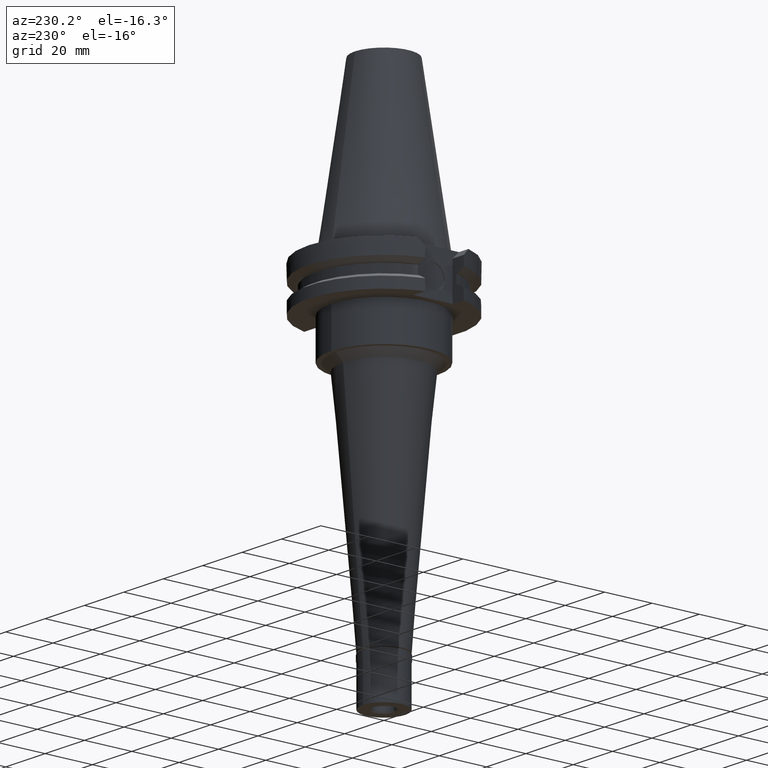
[diagram: clean part render]
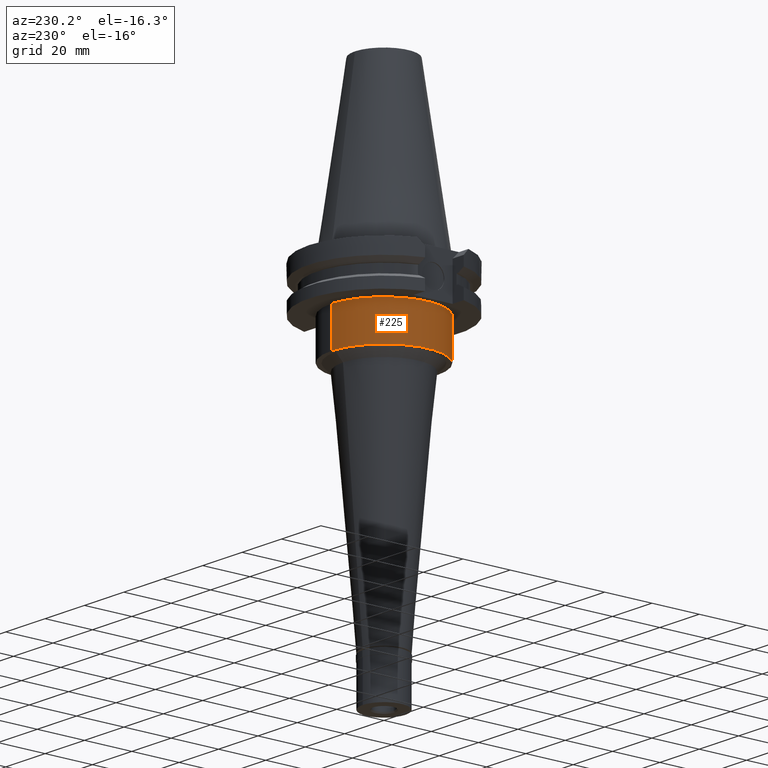
[diagram: same view with one face highlighted and labeled with its STEP entity id]
A machine part, auxiliary view. The second image highlights one B-rep face of the part: STEP entity #225.
In plain terms, the highlighted cylindrical surface (partial cylindrical patch) has radius 22.225 mm, axis along (0, 0, -1).
Its self-contained STEP definition (entity closure, byte-faithful):
#91 = VERTEX_POINT ( 'NONE', #2363 ) ;
#98 = DIRECTION ( 'NONE',  ( 0.0000000000000000000, -1.000000000000000000, 0.0000000000000000000 ) ) ;
#172 = CARTESIAN_POINT ( 'NONE',  ( 0.0000000000000000000, 2.192760710042999810E-14, -35.00000000000000000 ) ) ;
#225 = ADVANCED_FACE ( 'NONE', ( #2949 ), #2711, .T. ) ;
#287 = AXIS2_PLACEMENT_3D ( 'NONE', #1568, #1115, #98 ) ;
#357 = EDGE_CURVE ( 'NONE', #91, #2549, #2393, .T. ) ;
#382 = VECTOR ( 'NONE', #2472, 1000.000000000000000 ) ;
#401 = VECTOR ( 'NONE', #1764, 1000.000000000000000 ) ;
#415 = DIRECTION ( 'NONE',  ( 0.0000000000000000000, 0.0000000000000000000, 1.000000000000000000 ) ) ;
#545 = CARTESIAN_POINT ( 'NONE',  ( 0.0000000000000000000, 22.22500000000000142, -35.00000000000000000 ) ) ;
#661 = ORIENTED_EDGE ( 'NONE', *, *, #3199, .F. ) ;
#870 = EDGE_CURVE ( 'NONE', #2549, #2830, #1998, .T. ) ;
#904 = CARTESIAN_POINT ( 'NONE',  ( 0.0000000000000000000, -22.22500000000000142, -35.00000000000000000 ) ) ;
#932 = DIRECTION ( 'NONE',  ( 0.0000000000000000000, 1.000000000000000000, 0.0000000000000000000 ) ) ;
#974 = LINE ( 'NONE', #1230, #382 ) ;
#1115 = DIRECTION ( 'NONE',  ( 0.0000000000000000000, 0.0000000000000000000, -1.000000000000000000 ) ) ;
#1125 = ORIENTED_EDGE ( 'NONE', *, *, #870, .T. ) ;
#1230 = CARTESIAN_POINT ( 'NONE',  ( 0.0000000000000000000, -22.22500000000000142, -19.05000000000000071 ) ) ;
#1426 = CARTESIAN_POINT ( 'NONE',  ( 0.0000000000000000000, 2.192760710042999810E-14, 79.05249999999999488 ) ) ;
#1547 = ORIENTED_EDGE ( 'NONE', *, *, #3144, .T. ) ;
#1568 = CARTESIAN_POINT ( 'NONE',  ( 0.0000000000000000000, 2.192760710042999810E-14, -19.05000000000000071 ) ) ;
#1582 = VERTEX_POINT ( 'NONE', #904 ) ;
#1764 = DIRECTION ( 'NONE',  ( 0.0000000000000000000, 0.0000000000000000000, -1.000000000000000000 ) ) ;
#1998 = LINE ( 'NONE', #2940, #401 ) ;
#2156 = EDGE_LOOP ( 'NONE', ( #1547, #661, #2703, #1125 ) ) ;
#2184 = DIRECTION ( 'NONE',  ( 0.0000000000000000000, 0.0000000000000000000, -1.000000000000000000 ) ) ;
#2286 = CARTESIAN_POINT ( 'NONE',  ( 0.0000000000000000000, 22.22500000000000142, -19.05000000000000071 ) ) ;
#2363 = CARTESIAN_POINT ( 'NONE',  ( 0.0000000000000000000, -22.22500000000000142, -19.05000000000000071 ) ) ;
#2393 = CIRCLE ( 'NONE', #287, 22.22500000000000142 ) ;
#2411 = DIRECTION ( 'NONE',  ( 0.0000000000000000000, -1.000000000000000000, 0.0000000000000000000 ) ) ;
#2472 = DIRECTION ( 'NONE',  ( 0.0000000000000000000, 0.0000000000000000000, -1.000000000000000000 ) ) ;
#2549 = VERTEX_POINT ( 'NONE', #2286 ) ;
#2703 = ORIENTED_EDGE ( 'NONE', *, *, #357, .T. ) ;
#2711 = CYLINDRICAL_SURFACE ( 'NONE', #3122, 22.22500000000000142 ) ;
#2800 = AXIS2_PLACEMENT_3D ( 'NONE', #172, #415, #932 ) ;
#2830 = VERTEX_POINT ( 'NONE', #545 ) ;
#2940 = CARTESIAN_POINT ( 'NONE',  ( 0.0000000000000000000, 22.22500000000000142, -19.05000000000000071 ) ) ;
#2949 = FACE_OUTER_BOUND ( 'NONE', #2156, .T. ) ;
#2959 = CIRCLE ( 'NONE', #2800, 22.22500000000000142 ) ;
#3122 = AXIS2_PLACEMENT_3D ( 'NONE', #1426, #2184, #2411 ) ;
#3144 = EDGE_CURVE ( 'NONE', #2830, #1582, #2959, .T. ) ;
#3199 = EDGE_CURVE ( 'NONE', #91, #1582, #974, .T. ) ;